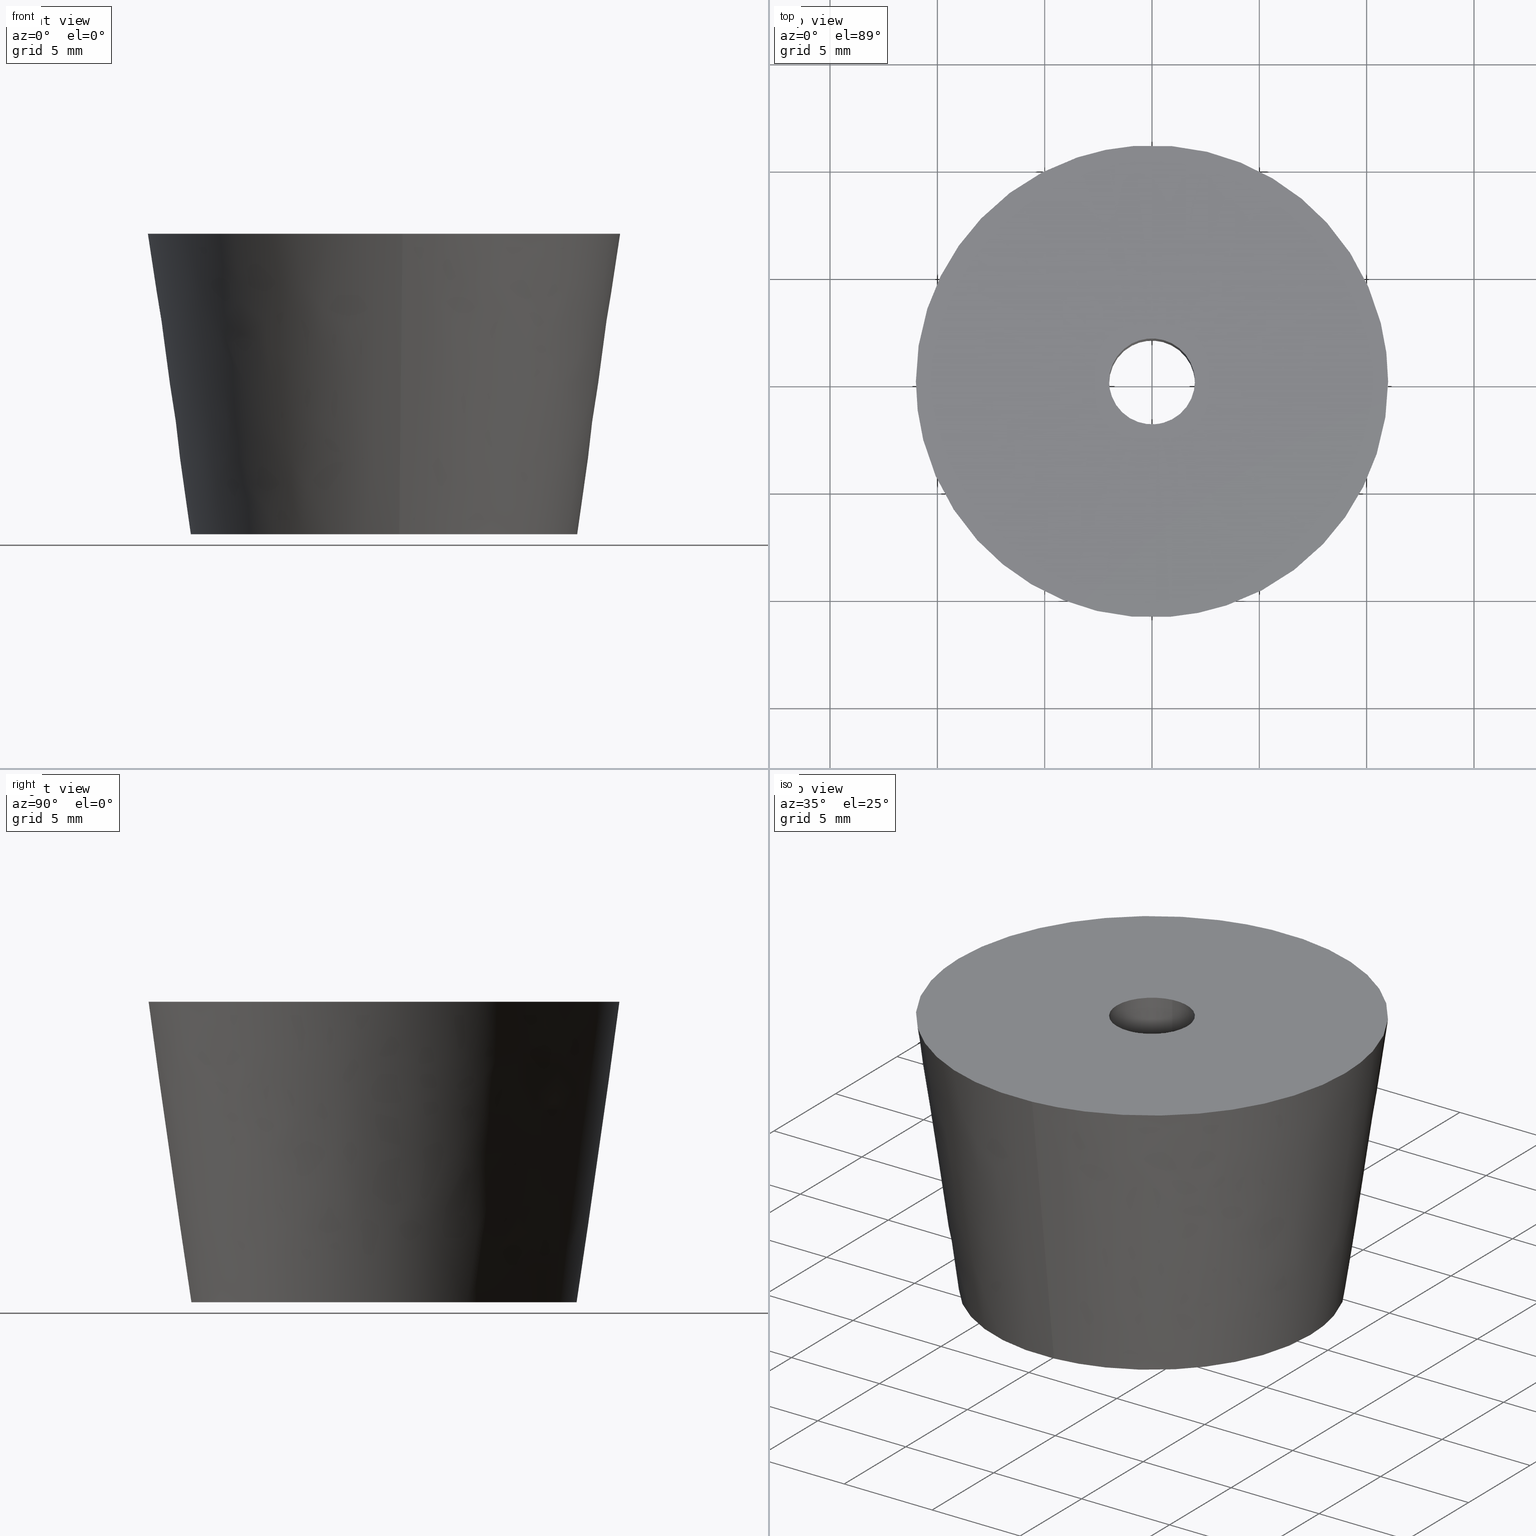
[diagram: canonical four-view strip — front | top / right | iso, engineering-drawing reading convention]
A machine part, canonical four-view strip (front | top / right | iso — engineering-drawing reading convention). The complete STEP part file that produces these views, byte-faithful:
ISO-10303-21;
HEADER;
/****************************************************************
 * Generated by software with PDE/Lib inside                    *
 * PDElib Version 4.4.1-0003, patched  Thursday August 19 11:58 *
 * International Technegroup Inc. (www.iti-oh.com)              *
 ****************************************************************/
FILE_DESCRIPTION((''),'2;1');
FILE_NAME('','2005-12-14T14:10:00',(''),(''),'','CADfix','');
FILE_SCHEMA(('AUTOMOTIVE_DESIGN'));
ENDSEC;
DATA;
#5=APPLICATION_CONTEXT('automotive design');
#6=APPLICATION_PROTOCOL_DEFINITION('Draft International Standard','automotive_design',1998,#5);
#7=PRODUCT_CONTEXT('None',#5,'mechanical');
#8=PRODUCT('rubber foot','','None',(#7));
#9=PRODUCT_RELATED_PRODUCT_CATEGORY('part','description',(#8));
#10=PRODUCT_DEFINITION_FORMATION('None','None',#8);
#11=PRODUCT_DEFINITION_CONTEXT('part definition',#5,'design');
#12=PRODUCT_DEFINITION('None','None',#10,#11);
#18=(NAMED_UNIT(*)PLANE_ANGLE_UNIT()SI_UNIT($,.RADIAN.));
#19=DIMENSIONAL_EXPONENTS(0.0,0.0,0.0,0.0,0.0,0.0,0.0);
#20=PLANE_ANGLE_MEASURE_WITH_UNIT(PLANE_ANGLE_MEASURE(0.017453292500000),#18);
#24=(CONVERSION_BASED_UNIT('DEGREE',#20)NAMED_UNIT(#19)PLANE_ANGLE_UNIT());
#28=(NAMED_UNIT(*)SI_UNIT($,.STERADIAN.)SOLID_ANGLE_UNIT());
#32=(LENGTH_UNIT()NAMED_UNIT(*)SI_UNIT(.MILLI.,.METRE.));
#34=UNCERTAINTY_MEASURE_WITH_UNIT(LENGTH_MEASURE(0.001000000000000),#32,'DISTANCE_ACCURACY_VALUE','');
#36=(GEOMETRIC_REPRESENTATION_CONTEXT(3)GLOBAL_UNCERTAINTY_ASSIGNED_CONTEXT((#34))GLOBAL_UNIT_ASSIGNED_CONTEXT((#24,#28,#32))REPRESENTATION_CONTEXT('None','None'));
#37=AXIS2_PLACEMENT_3D('',#38,#39,#40);
#38=CARTESIAN_POINT('',(0.0,0.0,0.0));
#39=DIRECTION('',(0.0,0.0,1.0));
#40=DIRECTION('',(1.0,0.0,0.0));
#41=ADVANCED_BREP_SHAPE_REPRESENTATION('',(#37,#657),#36);
#42=PRODUCT_DEFINITION_SHAPE('','',#12);
#43=SHAPE_DEFINITION_REPRESENTATION(#42,#41);
#44=CARTESIAN_POINT('',(-0.531154055955413,4.468542868636499,8.199999999999839));
#45=CARTESIAN_POINT('',(-0.403266278870900,4.483744269518725,8.199999999999838));
#46=CARTESIAN_POINT('',(-0.274718427906856,4.491606592898400,8.199999999999838));
#47=CARTESIAN_POINT('',(4.216888164991543,4.766325020805256,8.199999999999838));
#48=CARTESIAN_POINT('',(4.491606592898400,0.274718427906856,8.199999999999838));
#49=CARTESIAN_POINT('',(4.766325020805256,-4.216888164991543,8.199999999999838));
#50=CARTESIAN_POINT('',(0.274718427906856,-4.491606592898400,8.199999999999838));
#51=CARTESIAN_POINT('',(-0.531154055955413,4.468542868636499,-0.204999999999996));
#52=CARTESIAN_POINT('',(-0.403266278870900,4.483744269518725,-0.204999999999996));
#53=CARTESIAN_POINT('',(-0.274718427906856,4.491606592898400,-0.204999999999996));
#54=CARTESIAN_POINT('',(4.216888164991543,4.766325020805256,-0.204999999999996));
#55=CARTESIAN_POINT('',(4.491606592898400,0.274718427906856,-0.204999999999996));
#56=CARTESIAN_POINT('',(4.766325020805256,-4.216888164991543,-0.204999999999996));
#57=CARTESIAN_POINT('',(0.274718427906856,-4.491606592898400,-0.204999999999996));
#65=(BOUNDED_SURFACE()B_SPLINE_SURFACE(2,1,((#44,#51),(#45,#52),(#46,#53),(#47,#54),(#48,#55),(#49,#56),(#50,#57)),.UNSPECIFIED.,.F.,.F.,.U.)B_SPLINE_SURFACE_WITH_KNOTS((3,2,2,3),(2,2),(0.0,0.298233764908629,7.754077887624337,15.209922010340049),(0.0,8.404999999999834),.UNSPECIFIED.)GEOMETRIC_REPRESENTATION_ITEM()RATIONAL_B_SPLINE_SURFACE(((0.977505800795127,0.977505800795127),(0.988284271247462,0.988284271247462),(1.0,1.0),(0.707106781186548,0.707106781186548),(1.0,1.0),(0.707106781186548,0.707106781186548),(1.0,1.0)))REPRESENTATION_ITEM('')SURFACE());
#66=CARTESIAN_POINT('',(-0.531147358239286,4.468543664751406,7.999999999999863));
#67=VERTEX_POINT('',#66);
#68=CARTESIAN_POINT('',(4.500000000000000,0.0,7.999999999999839));
#69=VERTEX_POINT('',#68);
#70=CARTESIAN_POINT('',(-0.531147358239286,4.468543664751407,7.999999999999864));
#71=CARTESIAN_POINT('',(-0.266505154172585,4.500000000000000,7.999999999999840));
#72=CARTESIAN_POINT('',(0.0,4.500000000000000,7.999999999999839));
#73=CARTESIAN_POINT('',(4.500000000000000,4.500000000000000,7.999999999999839));
#74=CARTESIAN_POINT('',(4.500000000000000,0.0,7.999999999999839));
#82=(BOUNDED_CURVE()B_SPLINE_CURVE(2,(#70,#71,#72,#73,#74),.UNSPECIFIED.,.F.,.U.)B_SPLINE_CURVE_WITH_KNOTS((3,2,3),(0.229562726827724,0.250000000000000,0.500000000000000),.UNSPECIFIED.)CURVE()GEOMETRIC_REPRESENTATION_ITEM()RATIONAL_B_SPLINE_CURVE((0.956027250690530,0.976056245107209,1.0,0.707106781186547,1.0))REPRESENTATION_ITEM(''));
#83=EDGE_CURVE('',#67,#69,#82,.T.);
#84=ORIENTED_EDGE('',*,*,#83,.F.);
#85=CARTESIAN_POINT('',(-0.531147438978127,4.468543655154615,6.956599E-016));
#86=VERTEX_POINT('',#85);
#87=CARTESIAN_POINT('',(-0.531147358239286,4.468543664751406,7.999999999999863));
#88=CARTESIAN_POINT('',(-0.531147438978127,4.468543655154615,6.956599E-016));
#89=QUASI_UNIFORM_CURVE('',1,(#87,#88),.UNSPECIFIED.,.F.,.U.);
#90=EDGE_CURVE('',#67,#86,#89,.T.);
#91=ORIENTED_EDGE('',*,*,#90,.T.);
#92=CARTESIAN_POINT('',(4.500000000000000,0.0,0.0));
#93=VERTEX_POINT('',#92);
#94=CARTESIAN_POINT('',(-0.531147438978127,4.468543655154615,6.956599E-016));
#95=CARTESIAN_POINT('',(-0.266505194968768,4.500000000000000,0.0));
#96=CARTESIAN_POINT('',(0.0,4.500000000000000,0.0));
#97=CARTESIAN_POINT('',(4.500000000000000,4.500000000000000,0.0));
#98=CARTESIAN_POINT('',(4.500000000000000,0.0,0.0));
#106=(BOUNDED_CURVE()B_SPLINE_CURVE(2,(#94,#95,#96,#97,#98),.UNSPECIFIED.,.F.,.U.)B_SPLINE_CURVE_WITH_KNOTS((3,2,3),(0.229562723774127,0.250000000000000,0.500000000000000),.UNSPECIFIED.)CURVE()GEOMETRIC_REPRESENTATION_ITEM()RATIONAL_B_SPLINE_CURVE((0.956027244705340,0.976056241529698,1.0,0.707106781186547,1.0))REPRESENTATION_ITEM(''));
#107=EDGE_CURVE('',#86,#93,#106,.T.);
#108=ORIENTED_EDGE('',*,*,#107,.T.);
#109=CARTESIAN_POINT('',(0.274714620861846,-4.491606825744010,7.077672E-016));
#110=VERTEX_POINT('',#109);
#111=CARTESIAN_POINT('',(4.500000000000000,0.0,0.0));
#112=CARTESIAN_POINT('',(4.500000000000000,-4.233180895784416,0.0));
#113=CARTESIAN_POINT('',(0.274714620861846,-4.491606825744010,7.077672E-016));
#121=(BOUNDED_CURVE()B_SPLINE_CURVE(2,(#111,#112,#113),.UNSPECIFIED.,.F.,.U.)B_SPLINE_CURVE_WITH_KNOTS((3,3),(0.500000000000000,0.739333108491078),.UNSPECIFIED.)CURVE()GEOMETRIC_REPRESENTATION_ITEM()RATIONAL_B_SPLINE_CURVE((1.0,0.719603821941675,0.976072355113085))REPRESENTATION_ITEM(''));
#122=EDGE_CURVE('',#93,#110,#121,.T.);
#123=ORIENTED_EDGE('',*,*,#122,.T.);
#124=CARTESIAN_POINT('',(0.274714574489476,-4.491606828580186,7.999999999999824));
#125=VERTEX_POINT('',#124);
#126=CARTESIAN_POINT('',(0.274714574489476,-4.491606828580186,7.999999999999824));
#127=CARTESIAN_POINT('',(0.274714620861846,-4.491606825744010,7.077672E-016));
#128=QUASI_UNIFORM_CURVE('',1,(#126,#127),.UNSPECIFIED.,.F.,.U.);
#129=EDGE_CURVE('',#125,#110,#128,.T.);
#130=ORIENTED_EDGE('',*,*,#129,.F.);
#131=CARTESIAN_POINT('',(4.500000000000000,0.0,7.999999999999839));
#132=CARTESIAN_POINT('',(4.500000000000000,-4.233180939570402,7.999999999999839));
#133=CARTESIAN_POINT('',(0.274714574489476,-4.491606828580186,7.999999999999824));
#141=(BOUNDED_CURVE()B_SPLINE_CURVE(2,(#131,#132,#133),.UNSPECIFIED.,.F.,.U.)B_SPLINE_CURVE_WITH_KNOTS((3,3),(0.500000000000000,0.739333110272491),.UNSPECIFIED.)CURVE()GEOMETRIC_REPRESENTATION_ITEM()RATIONAL_B_SPLINE_CURVE((1.0,0.719603819854620,0.976072358930996))REPRESENTATION_ITEM(''));
#142=EDGE_CURVE('',#69,#125,#141,.T.);
#143=ORIENTED_EDGE('',*,*,#142,.F.);
#144=EDGE_LOOP('',(#84,#91,#108,#123,#130,#143));
#145=FACE_OUTER_BOUND('',#144,.T.);
#146=ADVANCED_FACE('',(#145),#65,.F.);
#147=CARTESIAN_POINT('',(0.336609845909213,-4.487821151608547,8.199999999999839));
#148=CARTESIAN_POINT('',(0.305752702420252,-4.489708455354689,8.199999999999834));
#149=CARTESIAN_POINT('',(-4.216888164991543,-4.766325020805256,8.199999999999838));
#150=CARTESIAN_POINT('',(-4.491606592898400,-0.274718427906856,8.199999999999838));
#151=CARTESIAN_POINT('',(-4.751037885296373,3.966945708777753,8.199999999999838));
#152=CARTESIAN_POINT('',(-0.499558072777999,4.472298530182094,8.199999999999838));
#153=CARTESIAN_POINT('',(-0.468131902753029,4.476034006860424,8.199999999999839));
#154=CARTESIAN_POINT('',(0.336609845909213,-4.487821151608547,-0.204999999999996));
#155=CARTESIAN_POINT('',(0.305752702420252,-4.489708455354689,-0.204999999999996));
#156=CARTESIAN_POINT('',(-4.216888164991543,-4.766325020805256,-0.204999999999996));
#157=CARTESIAN_POINT('',(-4.491606592898400,-0.274718427906856,-0.204999999999996));
#158=CARTESIAN_POINT('',(-4.751037885296373,3.966945708777753,-0.204999999999996));
#159=CARTESIAN_POINT('',(-0.499558072777999,4.472298530182094,-0.204999999999996));
#160=CARTESIAN_POINT('',(-0.468131902753029,4.476034006860424,-0.204999999999996));
#168=(BOUNDED_SURFACE()B_SPLINE_SURFACE(2,1,((#147,#154),(#148,#155),(#149,#156),(#150,#157),(#151,#158),(#152,#159),(#153,#160)),.UNSPECIFIED.,.F.,.F.,.U.)B_SPLINE_SURFACE_WITH_KNOTS((3,1,2,1,3),(2,2),(0.0,0.073062818483929,7.528906941199638,14.686517299006720,14.759592310404379),(0.0,8.404999999999834),.UNSPECIFIED.)GEOMETRIC_REPRESENTATION_ITEM()RATIONAL_B_SPLINE_SURFACE(((1.005740357155843,1.005740357155843),(1.002870178577922,1.002870178577922),(0.707106781186548,0.707106781186548),(1.0,1.0),(0.718822509939086,0.718822509939086),(0.980146805751071,0.980146805751071),(0.982787810707016,0.982787810707016)))REPRESENTATION_ITEM('')SURFACE());
#169=CARTESIAN_POINT('',(-4.500000000000000,0.0,7.999999999999839));
#170=VERTEX_POINT('',#169);
#171=CARTESIAN_POINT('',(-4.500000000000000,0.0,7.999999999999839));
#172=CARTESIAN_POINT('',(-4.500000000000000,3.996791399574260,7.999999999999838));
#173=CARTESIAN_POINT('',(-0.531147358239286,4.468543664751407,7.999999999999864));
#181=(BOUNDED_CURVE()B_SPLINE_CURVE(2,(#171,#172,#173),.UNSPECIFIED.,.F.,.U.)B_SPLINE_CURVE_WITH_KNOTS((3,3),(0.0,0.229562726827724),.UNSPECIFIED.)CURVE()GEOMETRIC_REPRESENTATION_ITEM()RATIONAL_B_SPLINE_CURVE((1.0,0.731050536079339,0.956027250690530))REPRESENTATION_ITEM(''));
#182=EDGE_CURVE('',#170,#67,#181,.T.);
#183=ORIENTED_EDGE('',*,*,#182,.F.);
#184=CARTESIAN_POINT('',(0.274714574489476,-4.491606828580186,7.999999999999824));
#185=CARTESIAN_POINT('',(0.137485502732782,-4.499999999999999,7.999999999999839));
#186=CARTESIAN_POINT('',(0.0,-4.500000000000000,7.999999999999839));
#187=CARTESIAN_POINT('',(-4.500000000000000,-4.500000000000000,7.999999999999839));
#188=CARTESIAN_POINT('',(-4.500000000000000,0.0,7.999999999999839));
#196=(BOUNDED_CURVE()B_SPLINE_CURVE(2,(#184,#185,#186,#187,#188),.UNSPECIFIED.,.F.,.U.)B_SPLINE_CURVE_WITH_KNOTS((3,2,3),(0.739333110272491,0.750000000000000,1.0),.UNSPECIFIED.)CURVE()GEOMETRIC_REPRESENTATION_ITEM()RATIONAL_B_SPLINE_CURVE((0.976072358930996,0.987502961331927,1.0,0.707106781186547,1.0))REPRESENTATION_ITEM(''));
#197=EDGE_CURVE('',#125,#170,#196,.T.);
#198=ORIENTED_EDGE('',*,*,#197,.F.);
#199=ORIENTED_EDGE('',*,*,#129,.T.);
#200=CARTESIAN_POINT('',(-4.500000000000000,0.0,0.0));
#201=VERTEX_POINT('',#200);
#202=CARTESIAN_POINT('',(0.274714620861846,-4.491606825744010,7.077672E-016));
#203=CARTESIAN_POINT('',(0.137485525983976,-4.500000000000001,0.0));
#204=CARTESIAN_POINT('',(0.0,-4.500000000000000,0.0));
#205=CARTESIAN_POINT('',(-4.500000000000000,-4.500000000000000,0.0));
#206=CARTESIAN_POINT('',(-4.500000000000000,0.0,0.0));
#214=(BOUNDED_CURVE()B_SPLINE_CURVE(2,(#202,#203,#204,#205,#206),.UNSPECIFIED.,.F.,.U.)B_SPLINE_CURVE_WITH_KNOTS((3,2,3),(0.739333108491078,0.750000000000000,1.0),.UNSPECIFIED.)CURVE()GEOMETRIC_REPRESENTATION_ITEM()RATIONAL_B_SPLINE_CURVE((0.976072355113085,0.987502959244872,1.0,0.707106781186547,1.0))REPRESENTATION_ITEM(''));
#215=EDGE_CURVE('',#110,#201,#214,.T.);
#216=ORIENTED_EDGE('',*,*,#215,.T.);
#217=CARTESIAN_POINT('',(-4.500000000000000,0.0,0.0));
#218=CARTESIAN_POINT('',(-4.500000000000000,3.996791326850819,0.0));
#219=CARTESIAN_POINT('',(-0.531147438978127,4.468543655154615,6.956599E-016));
#227=(BOUNDED_CURVE()B_SPLINE_CURVE(2,(#217,#218,#219),.UNSPECIFIED.,.F.,.U.)B_SPLINE_CURVE_WITH_KNOTS((3,3),(0.0,0.229562723774127),.UNSPECIFIED.)CURVE()GEOMETRIC_REPRESENTATION_ITEM()RATIONAL_B_SPLINE_CURVE((1.0,0.731050539656850,0.956027244705340))REPRESENTATION_ITEM(''));
#228=EDGE_CURVE('',#201,#86,#227,.T.);
#229=ORIENTED_EDGE('',*,*,#228,.T.);
#230=ORIENTED_EDGE('',*,*,#90,.F.);
#231=EDGE_LOOP('',(#183,#198,#199,#216,#229,#230));
#232=FACE_OUTER_BOUND('',#231,.T.);
#233=ADVANCED_FACE('',(#232),#168,.F.);
#234=CARTESIAN_POINT('',(-0.702208906764217,8.922410136911482,-0.350000000000000));
#235=CARTESIAN_POINT('',(-9.624619043675699,8.220201230147266,-0.350000000000000));
#236=CARTESIAN_POINT('',(-8.922410136911482,-0.702208906764217,-0.350000000000000));
#237=CARTESIAN_POINT('',(-8.220201230147266,-9.624619043675699,-0.350000000000000));
#238=CARTESIAN_POINT('',(0.702208906764217,-8.922410136911482,-0.350000000000000));
#239=CARTESIAN_POINT('',(-0.867071081662353,11.017182684418231,14.358750000000001));
#240=CARTESIAN_POINT('',(-11.884253766080581,10.150111602755874,14.358749999999999));
#241=CARTESIAN_POINT('',(-11.017182684418231,-0.867071081662353,14.358750000000001));
#242=CARTESIAN_POINT('',(-10.150111602755874,-11.884253766080581,14.358749999999999));
#243=CARTESIAN_POINT('',(0.867071081662353,-11.017182684418231,14.358750000000001));
#251=(BOUNDED_SURFACE()B_SPLINE_SURFACE(2,1,((#234,#239),(#235,#240),(#236,#241),(#237,#242),(#238,#243)),.UNSPECIFIED.,.F.,.F.,.U.)B_SPLINE_SURFACE_WITH_KNOTS((3,2,3),(2,2),(0.0,18.310310524702661,36.620621049405322),(0.0,14.858081239682340),.UNSPECIFIED.)GEOMETRIC_REPRESENTATION_ITEM()RATIONAL_B_SPLINE_SURFACE(((1.0,1.0),(0.707106781186548,0.707106781186548),(1.0,1.0),(0.707106781186548,0.707106781186548),(1.0,1.0)))REPRESENTATION_ITEM('')SURFACE());
#252=CARTESIAN_POINT('',(-9.0,0.0,0.0));
#253=VERTEX_POINT('',#252);
#254=CARTESIAN_POINT('',(-0.706130450822384,8.972256042262355,-0.000000504974533));
#255=VERTEX_POINT('',#254);
#256=CARTESIAN_POINT('',(-9.0,0.0,0.0));
#257=CARTESIAN_POINT('',(-9.0,8.319515731800587,0.0));
#258=CARTESIAN_POINT('',(-0.706130450822384,8.972256042262355,-0.000000504974533));
#266=(BOUNDED_CURVE()B_SPLINE_CURVE(2,(#256,#257,#258),.UNSPECIFIED.,.F.,.U.)B_SPLINE_CURVE_WITH_KNOTS((3,3),(0.0,0.236331327478090),.UNSPECIFIED.)CURVE()GEOMETRIC_REPRESENTATION_ITEM()RATIONAL_B_SPLINE_CURVE((1.0,0.723120627153944,0.969723412195964))REPRESENTATION_ITEM(''));
#267=EDGE_CURVE('',#253,#255,#266,.T.);
#268=ORIENTED_EDGE('',*,*,#267,.F.);
#269=CARTESIAN_POINT('',(0.706130450822384,-8.972256042262355,-0.000000504974533));
#270=VERTEX_POINT('',#269);
#271=CARTESIAN_POINT('',(0.706130450822384,-8.972256042262355,-0.000000504974533));
#272=CARTESIAN_POINT('',(0.353610257274673,-9.0,0.0));
#273=CARTESIAN_POINT('',(0.0,-9.0,0.0));
#274=CARTESIAN_POINT('',(-9.0,-9.0,0.0));
#275=CARTESIAN_POINT('',(-9.0,0.0,0.0));
#283=(BOUNDED_CURVE()B_SPLINE_CURVE(2,(#271,#272,#273,#274,#275),.UNSPECIFIED.,.F.,.U.)B_SPLINE_CURVE_WITH_KNOTS((3,2,3),(0.736331327478090,0.750000000000000,1.0),.UNSPECIFIED.)CURVE()GEOMETRIC_REPRESENTATION_ITEM()RATIONAL_B_SPLINE_CURVE((0.969723412195964,0.983986154032603,1.0,0.707106781186547,1.0))REPRESENTATION_ITEM(''));
#284=EDGE_CURVE('',#270,#253,#283,.T.);
#285=ORIENTED_EDGE('',*,*,#284,.F.);
#286=CARTESIAN_POINT('',(0.863043719665199,-10.966090825320739,13.999997598133641));
#287=VERTEX_POINT('',#286);
#288=CARTESIAN_POINT('',(0.706130450822384,-8.972256042262355,-0.000000504974533));
#289=CARTESIAN_POINT('',(0.863043719665199,-10.966090825320739,13.999997598133641));
#290=QUASI_UNIFORM_CURVE('',1,(#288,#289),.UNSPECIFIED.,.F.,.U.);
#291=EDGE_CURVE('',#270,#287,#290,.T.);
#292=ORIENTED_EDGE('',*,*,#291,.T.);
#293=CARTESIAN_POINT('',(-11.0,0.0,14.0));
#294=VERTEX_POINT('',#293);
#295=CARTESIAN_POINT('',(0.863043719665199,-10.966090825320734,13.999997598133639));
#296=CARTESIAN_POINT('',(0.432187982809188,-10.999999664143953,13.999997641750518));
#297=CARTESIAN_POINT('',(-0.000000025903385,-10.999999670863840,13.999997688934970));
#298=CARTESIAN_POINT('',(-11.000000012442824,-10.999999841897772,13.999998889868149));
#299=CARTESIAN_POINT('',(-11.0,0.0,14.0));
#307=(BOUNDED_CURVE()B_SPLINE_CURVE(2,(#295,#296,#297,#298,#299),.UNSPECIFIED.,.F.,.U.)B_SPLINE_CURVE_WITH_KNOTS((3,2,3),(0.736331399216205,0.750000000000000,1.0),.UNSPECIFIED.)CURVE()GEOMETRIC_REPRESENTATION_ITEM()RATIONAL_B_SPLINE_CURVE((0.969723561908021,0.983986238079033,1.0,0.707106781186548,1.0))REPRESENTATION_ITEM(''));
#308=EDGE_CURVE('',#287,#294,#307,.T.);
#309=ORIENTED_EDGE('',*,*,#308,.T.);
#310=CARTESIAN_POINT('',(-0.863043719665198,10.966090825320739,13.999997598133641));
#311=VERTEX_POINT('',#310);
#312=CARTESIAN_POINT('',(-11.0,0.0,14.0));
#313=CARTESIAN_POINT('',(-10.999999986539438,10.168301102910700,13.999998799066827));
#314=CARTESIAN_POINT('',(-0.863043719665198,10.966090825320736,13.999997598133641));
#322=(BOUNDED_CURVE()B_SPLINE_CURVE(2,(#312,#313,#314),.UNSPECIFIED.,.F.,.U.)B_SPLINE_CURVE_WITH_KNOTS((3,3),(0.0,0.236331399216205),.UNSPECIFIED.)CURVE()GEOMETRIC_REPRESENTATION_ITEM()RATIONAL_B_SPLINE_CURVE((1.0,0.723120543107515,0.969723561908021))REPRESENTATION_ITEM(''));
#323=EDGE_CURVE('',#294,#311,#322,.T.);
#324=ORIENTED_EDGE('',*,*,#323,.T.);
#325=CARTESIAN_POINT('',(-0.706130450822384,8.972256042262355,-0.000000504974533));
#326=CARTESIAN_POINT('',(-0.863043719665198,10.966090825320739,13.999997598133641));
#327=QUASI_UNIFORM_CURVE('',1,(#325,#326),.UNSPECIFIED.,.F.,.U.);
#328=EDGE_CURVE('',#255,#311,#327,.T.);
#329=ORIENTED_EDGE('',*,*,#328,.F.);
#330=EDGE_LOOP('',(#268,#285,#292,#309,#324,#329));
#331=FACE_OUTER_BOUND('',#330,.T.);
#332=ADVANCED_FACE('',(#331),#251,.T.);
#333=CARTESIAN_POINT('',(0.702208906764217,-8.922410136911482,-0.350000000000000));
#334=CARTESIAN_POINT('',(9.624619043675699,-8.220201230147266,-0.350000000000000));
#335=CARTESIAN_POINT('',(8.922410136911482,0.702208906764217,-0.350000000000000));
#336=CARTESIAN_POINT('',(8.220201230147266,9.624619043675699,-0.350000000000000));
#337=CARTESIAN_POINT('',(-0.702208906764217,8.922410136911482,-0.350000000000000));
#338=CARTESIAN_POINT('',(0.867071081662353,-11.017182684418231,14.358750000000001));
#339=CARTESIAN_POINT('',(11.884253766080581,-10.150111602755874,14.358749999999999));
#340=CARTESIAN_POINT('',(11.017182684418231,0.867071081662353,14.358750000000001));
#341=CARTESIAN_POINT('',(10.150111602755874,11.884253766080581,14.358749999999999));
#342=CARTESIAN_POINT('',(-0.867071081662353,11.017182684418231,14.358750000000001));
#350=(BOUNDED_SURFACE()B_SPLINE_SURFACE(2,1,((#333,#338),(#334,#339),(#335,#340),(#336,#341),(#337,#342)),.UNSPECIFIED.,.F.,.F.,.U.)B_SPLINE_SURFACE_WITH_KNOTS((3,2,3),(2,2),(0.0,18.310310524702661,36.620621049405322),(0.0,14.858081239682340),.UNSPECIFIED.)GEOMETRIC_REPRESENTATION_ITEM()RATIONAL_B_SPLINE_SURFACE(((1.0,1.0),(0.707106781186548,0.707106781186548),(1.0,1.0),(0.707106781186548,0.707106781186548),(1.0,1.0)))REPRESENTATION_ITEM('')SURFACE());
#351=CARTESIAN_POINT('',(9.0,0.0,0.0));
#352=VERTEX_POINT('',#351);
#353=CARTESIAN_POINT('',(-0.706130450822384,8.972256042262355,-0.000000504974533));
#354=CARTESIAN_POINT('',(-0.353610257274673,9.0,0.0));
#355=CARTESIAN_POINT('',(0.0,9.0,0.0));
#356=CARTESIAN_POINT('',(9.0,9.0,0.0));
#357=CARTESIAN_POINT('',(9.0,0.0,0.0));
#365=(BOUNDED_CURVE()B_SPLINE_CURVE(2,(#353,#354,#355,#356,#357),.UNSPECIFIED.,.F.,.U.)B_SPLINE_CURVE_WITH_KNOTS((3,2,3),(0.236331327478090,0.250000000000000,0.500000000000000),.UNSPECIFIED.)CURVE()GEOMETRIC_REPRESENTATION_ITEM()RATIONAL_B_SPLINE_CURVE((0.969723412195964,0.983986154032603,1.0,0.707106781186547,1.0))REPRESENTATION_ITEM(''));
#366=EDGE_CURVE('',#255,#352,#365,.T.);
#367=ORIENTED_EDGE('',*,*,#366,.F.);
#368=ORIENTED_EDGE('',*,*,#328,.T.);
#369=CARTESIAN_POINT('',(11.0,0.0,14.0));
#370=VERTEX_POINT('',#369);
#371=CARTESIAN_POINT('',(-0.863043719665198,10.966090825320736,13.999997598133641));
#372=CARTESIAN_POINT('',(-0.432187982809186,10.999999664143953,13.999997641750518));
#373=CARTESIAN_POINT('',(0.000000025903387,10.999999670863840,13.999997688934970));
#374=CARTESIAN_POINT('',(11.000000012442825,10.999999841897772,13.999998889868145));
#375=CARTESIAN_POINT('',(11.0,0.0,14.0));
#383=(BOUNDED_CURVE()B_SPLINE_CURVE(2,(#371,#372,#373,#374,#375),.UNSPECIFIED.,.F.,.U.)B_SPLINE_CURVE_WITH_KNOTS((3,2,3),(0.236331399216205,0.250000000000000,0.500000000000000),.UNSPECIFIED.)CURVE()GEOMETRIC_REPRESENTATION_ITEM()RATIONAL_B_SPLINE_CURVE((0.969723561908021,0.983986238079033,1.0,0.707106781186548,1.0))REPRESENTATION_ITEM(''));
#384=EDGE_CURVE('',#311,#370,#383,.T.);
#385=ORIENTED_EDGE('',*,*,#384,.T.);
#386=CARTESIAN_POINT('',(11.0,0.0,14.0));
#387=CARTESIAN_POINT('',(10.999999986539441,-10.168301102910700,13.999998799066827));
#388=CARTESIAN_POINT('',(0.863043719665199,-10.966090825320734,13.999997598133639));
#396=(BOUNDED_CURVE()B_SPLINE_CURVE(2,(#386,#387,#388),.UNSPECIFIED.,.F.,.U.)B_SPLINE_CURVE_WITH_KNOTS((3,3),(0.500000000000000,0.736331399216205),.UNSPECIFIED.)CURVE()GEOMETRIC_REPRESENTATION_ITEM()RATIONAL_B_SPLINE_CURVE((1.0,0.723120543107515,0.969723561908021))REPRESENTATION_ITEM(''));
#397=EDGE_CURVE('',#370,#287,#396,.T.);
#398=ORIENTED_EDGE('',*,*,#397,.T.);
#399=ORIENTED_EDGE('',*,*,#291,.F.);
#400=CARTESIAN_POINT('',(9.0,0.0,0.0));
#401=CARTESIAN_POINT('',(9.0,-8.319515731800587,0.0));
#402=CARTESIAN_POINT('',(0.706130450822384,-8.972256042262355,-0.000000504974533));
#410=(BOUNDED_CURVE()B_SPLINE_CURVE(2,(#400,#401,#402),.UNSPECIFIED.,.F.,.U.)B_SPLINE_CURVE_WITH_KNOTS((3,3),(0.500000000000000,0.736331327478090),.UNSPECIFIED.)CURVE()GEOMETRIC_REPRESENTATION_ITEM()RATIONAL_B_SPLINE_CURVE((1.0,0.723120627153944,0.969723412195964))REPRESENTATION_ITEM(''));
#411=EDGE_CURVE('',#352,#270,#410,.T.);
#412=ORIENTED_EDGE('',*,*,#411,.F.);
#413=EDGE_LOOP('',(#367,#368,#385,#398,#399,#412));
#414=FACE_OUTER_BOUND('',#413,.T.);
#415=ADVANCED_FACE('',(#414),#350,.T.);
#416=CARTESIAN_POINT('',(-0.236068469313517,1.986019052727332,14.150000000000007));
#417=CARTESIAN_POINT('',(-0.179229457275955,1.992775230897211,14.150000000000006));
#418=CARTESIAN_POINT('',(-0.122097079069714,1.996269596843733,14.150000000000009));
#419=CARTESIAN_POINT('',(1.874172517774020,2.118366675913447,14.150000000000004));
#420=CARTESIAN_POINT('',(1.996269596843733,0.122097079069714,14.150000000000009));
#421=CARTESIAN_POINT('',(2.118366675913447,-1.874172517774020,14.150000000000004));
#422=CARTESIAN_POINT('',(0.122097079069714,-1.996269596843733,14.150000000000009));
#423=CARTESIAN_POINT('',(-0.236068469313517,1.986019052727332,7.846249999999835));
#424=CARTESIAN_POINT('',(-0.179229457275955,1.992775230897211,7.846249999999834));
#425=CARTESIAN_POINT('',(-0.122097079069714,1.996269596843733,7.846249999999833));
#426=CARTESIAN_POINT('',(1.874172517774020,2.118366675913447,7.846249999999833));
#427=CARTESIAN_POINT('',(1.996269596843733,0.122097079069714,7.846249999999833));
#428=CARTESIAN_POINT('',(2.118366675913447,-1.874172517774020,7.846249999999833));
#429=CARTESIAN_POINT('',(0.122097079069714,-1.996269596843733,7.846249999999833));
#437=(BOUNDED_SURFACE()B_SPLINE_SURFACE(2,1,((#416,#423),(#417,#424),(#418,#425),(#419,#426),(#420,#427),(#421,#428),(#422,#429)),.UNSPECIFIED.,.F.,.F.,.U.)B_SPLINE_SURFACE_WITH_KNOTS((3,2,2,3),(2,2),(0.0,0.132548339959391,3.446256838944149,6.759965337928908),(0.0,6.303750000000174),.UNSPECIFIED.)GEOMETRIC_REPRESENTATION_ITEM()RATIONAL_B_SPLINE_SURFACE(((0.977505800795127,0.977505800795127),(0.988284271247462,0.988284271247462),(1.0,1.0),(0.707106781186548,0.707106781186548),(1.0,1.0),(0.707106781186548,0.707106781186548),(1.0,1.0)))REPRESENTATION_ITEM('')SURFACE());
#438=CARTESIAN_POINT('',(-0.236068469325456,1.986019052725913,7.999999999999839));
#439=VERTEX_POINT('',#438);
#440=CARTESIAN_POINT('',(2.0,0.0,7.999999999999839));
#441=VERTEX_POINT('',#440);
#442=CARTESIAN_POINT('',(-0.236068469325456,1.986019052725914,7.999999999999839));
#443=CARTESIAN_POINT('',(-0.118448239315886,2.000000000000000,7.999999999999840));
#444=CARTESIAN_POINT('',(0.0,2.0,7.999999999999839));
#445=CARTESIAN_POINT('',(2.000000000000000,2.000000000000000,7.999999999999839));
#446=CARTESIAN_POINT('',(2.0,0.0,7.999999999999839));
#454=(BOUNDED_CURVE()B_SPLINE_CURVE(2,(#442,#443,#444,#445,#446),.UNSPECIFIED.,.F.,.U.)B_SPLINE_CURVE_WITH_KNOTS((3,2,3),(0.229562473513612,0.250000000000000,0.500000000000000),.UNSPECIFIED.)CURVE()GEOMETRIC_REPRESENTATION_ITEM()RATIONAL_B_SPLINE_CURVE((0.956026754183903,0.976055948331267,1.0,0.707106781186548,1.0))REPRESENTATION_ITEM(''));
#455=EDGE_CURVE('',#439,#441,#454,.T.);
#456=ORIENTED_EDGE('',*,*,#455,.T.);
#457=CARTESIAN_POINT('',(0.122097079083763,-1.996269596842874,7.999999999999840));
#458=VERTEX_POINT('',#457);
#459=CARTESIAN_POINT('',(2.0,0.0,7.999999999999839));
#460=CARTESIAN_POINT('',(2.000000000000000,-1.881412133784864,7.999999999999839));
#461=CARTESIAN_POINT('',(0.122097079083763,-1.996269596842874,7.999999999999840));
#469=(BOUNDED_CURVE()B_SPLINE_CURVE(2,(#459,#460,#461),.UNSPECIFIED.,.F.,.U.)B_SPLINE_CURVE_WITH_KNOTS((3,3),(0.500000000000000,0.739332962239540),.UNSPECIFIED.)CURVE()GEOMETRIC_REPRESENTATION_ITEM()RATIONAL_B_SPLINE_CURVE((1.0,0.719603993286010,0.976072041667998))REPRESENTATION_ITEM(''));
#470=EDGE_CURVE('',#441,#458,#469,.T.);
#471=ORIENTED_EDGE('',*,*,#470,.T.);
#472=CARTESIAN_POINT('',(0.122097079083763,-1.996269596842874,14.0));
#473=VERTEX_POINT('',#472);
#474=CARTESIAN_POINT('',(0.122097079083763,-1.996269596842874,14.0));
#475=CARTESIAN_POINT('',(0.122097079083763,-1.996269596842874,7.999999999999840));
#476=QUASI_UNIFORM_CURVE('',1,(#474,#475),.UNSPECIFIED.,.F.,.U.);
#477=EDGE_CURVE('',#473,#458,#476,.T.);
#478=ORIENTED_EDGE('',*,*,#477,.F.);
#479=CARTESIAN_POINT('',(2.0,0.0,14.0));
#480=VERTEX_POINT('',#479);
#481=CARTESIAN_POINT('',(2.0,0.0,14.0));
#482=CARTESIAN_POINT('',(2.000000000000000,-1.881412133784864,14.000000000000005));
#483=CARTESIAN_POINT('',(0.122097079083763,-1.996269596842874,14.000000000000002));
#491=(BOUNDED_CURVE()B_SPLINE_CURVE(2,(#481,#482,#483),.UNSPECIFIED.,.F.,.U.)B_SPLINE_CURVE_WITH_KNOTS((3,3),(0.500000000000000,0.739332962239540),.UNSPECIFIED.)CURVE()GEOMETRIC_REPRESENTATION_ITEM()RATIONAL_B_SPLINE_CURVE((1.0,0.719603993286010,0.976072041667998))REPRESENTATION_ITEM(''));
#492=EDGE_CURVE('',#480,#473,#491,.T.);
#493=ORIENTED_EDGE('',*,*,#492,.F.);
#494=CARTESIAN_POINT('',(-0.236068469325456,1.986019052725913,14.0));
#495=VERTEX_POINT('',#494);
#496=CARTESIAN_POINT('',(-0.236068469325456,1.986019052725914,13.999999999999998));
#497=CARTESIAN_POINT('',(-0.118448239315886,2.000000000000000,14.000000000000005));
#498=CARTESIAN_POINT('',(0.0,2.0,14.0));
#499=CARTESIAN_POINT('',(2.000000000000000,2.000000000000000,13.999999999999998));
#500=CARTESIAN_POINT('',(2.0,0.0,14.0));
#508=(BOUNDED_CURVE()B_SPLINE_CURVE(2,(#496,#497,#498,#499,#500),.UNSPECIFIED.,.F.,.U.)B_SPLINE_CURVE_WITH_KNOTS((3,2,3),(0.229562473513612,0.250000000000000,0.500000000000000),.UNSPECIFIED.)CURVE()GEOMETRIC_REPRESENTATION_ITEM()RATIONAL_B_SPLINE_CURVE((0.956026754183903,0.976055948331267,1.0,0.707106781186548,1.0))REPRESENTATION_ITEM(''));
#509=EDGE_CURVE('',#495,#480,#508,.T.);
#510=ORIENTED_EDGE('',*,*,#509,.F.);
#511=CARTESIAN_POINT('',(-0.236068469325456,1.986019052725913,14.0));
#512=CARTESIAN_POINT('',(-0.236068469325456,1.986019052725913,7.999999999999839));
#513=QUASI_UNIFORM_CURVE('',1,(#511,#512),.UNSPECIFIED.,.F.,.U.);
#514=EDGE_CURVE('',#495,#439,#513,.T.);
#515=ORIENTED_EDGE('',*,*,#514,.T.);
#516=EDGE_LOOP('',(#456,#471,#478,#493,#510,#515));
#517=FACE_OUTER_BOUND('',#516,.T.);
#518=ADVANCED_FACE('',(#517),#437,.F.);
#519=CARTESIAN_POINT('',(0.122097079069714,-1.996269596843733,14.150000000000009));
#520=CARTESIAN_POINT('',(-1.874172517774020,-2.118366675913447,14.150000000000004));
#521=CARTESIAN_POINT('',(-1.996269596843733,-0.122097079069714,14.150000000000009));
#522=CARTESIAN_POINT('',(-2.111572393465055,1.763086981679002,14.150000000000009));
#523=CARTESIAN_POINT('',(-0.236068469313517,1.986019052727332,14.150000000000007));
#524=CARTESIAN_POINT('',(0.122097079069714,-1.996269596843733,7.846249999999833));
#525=CARTESIAN_POINT('',(-1.874172517774020,-2.118366675913447,7.846249999999833));
#526=CARTESIAN_POINT('',(-1.996269596843733,-0.122097079069714,7.846249999999833));
#527=CARTESIAN_POINT('',(-2.111572393465055,1.763086981679002,7.846249999999833));
#528=CARTESIAN_POINT('',(-0.236068469313517,1.986019052727332,7.846249999999835));
#536=(BOUNDED_SURFACE()B_SPLINE_SURFACE(2,1,((#519,#524),(#520,#525),(#521,#526),(#522,#527),(#523,#528)),.UNSPECIFIED.,.F.,.F.,.U.)B_SPLINE_SURFACE_WITH_KNOTS((3,2,3),(2,2),(0.0,3.313708498984759,6.494868658010128),(0.0,6.303750000000174),.UNSPECIFIED.)GEOMETRIC_REPRESENTATION_ITEM()RATIONAL_B_SPLINE_SURFACE(((1.0,1.0),(0.707106781186548,0.707106781186548),(1.0,1.0),(0.718822509939086,0.718822509939086),(0.977505800795127,0.977505800795127)))REPRESENTATION_ITEM('')SURFACE());
#537=CARTESIAN_POINT('',(-2.0,0.0,7.999999999999839));
#538=VERTEX_POINT('',#537);
#539=CARTESIAN_POINT('',(-2.0,0.0,7.999999999999839));
#540=CARTESIAN_POINT('',(-2.000000000000000,1.776349051881226,7.999999999999838));
#541=CARTESIAN_POINT('',(-0.236068469325457,1.986019052725913,7.999999999999839));
#549=(BOUNDED_CURVE()B_SPLINE_CURVE(2,(#539,#540,#541),.UNSPECIFIED.,.F.,.U.)B_SPLINE_CURVE_WITH_KNOTS((3,3),(0.0,0.229562473513612),.UNSPECIFIED.)CURVE()GEOMETRIC_REPRESENTATION_ITEM()RATIONAL_B_SPLINE_CURVE((1.0,0.731050832855281,0.956026754183903))REPRESENTATION_ITEM(''));
#550=EDGE_CURVE('',#538,#439,#549,.T.);
#551=ORIENTED_EDGE('',*,*,#550,.T.);
#552=ORIENTED_EDGE('',*,*,#514,.F.);
#553=CARTESIAN_POINT('',(-2.0,0.0,14.0));
#554=VERTEX_POINT('',#553);
#555=CARTESIAN_POINT('',(-2.0,0.0,14.0));
#556=CARTESIAN_POINT('',(-2.000000000000000,1.776349051881226,13.999999999999996));
#557=CARTESIAN_POINT('',(-0.236068469325457,1.986019052725913,14.0));
#565=(BOUNDED_CURVE()B_SPLINE_CURVE(2,(#555,#556,#557),.UNSPECIFIED.,.F.,.U.)B_SPLINE_CURVE_WITH_KNOTS((3,3),(0.0,0.229562473513612),.UNSPECIFIED.)CURVE()GEOMETRIC_REPRESENTATION_ITEM()RATIONAL_B_SPLINE_CURVE((1.0,0.731050832855281,0.956026754183903))REPRESENTATION_ITEM(''));
#566=EDGE_CURVE('',#554,#495,#565,.T.);
#567=ORIENTED_EDGE('',*,*,#566,.F.);
#568=CARTESIAN_POINT('',(0.122097079083763,-1.996269596842875,13.999999999999996));
#569=CARTESIAN_POINT('',(0.061105526611267,-2.0,13.999999999999998));
#570=CARTESIAN_POINT('',(0.0,-2.0,14.0));
#571=CARTESIAN_POINT('',(-2.000000000000000,-2.000000000000000,13.999999999999998));
#572=CARTESIAN_POINT('',(-2.0,0.0,14.0));
#580=(BOUNDED_CURVE()B_SPLINE_CURVE(2,(#568,#569,#570,#571,#572),.UNSPECIFIED.,.F.,.U.)B_SPLINE_CURVE_WITH_KNOTS((3,2,3),(0.739332962239540,0.750000000000000,1.0),.UNSPECIFIED.)CURVE()GEOMETRIC_REPRESENTATION_ITEM()RATIONAL_B_SPLINE_CURVE((0.976072041667997,0.987502787900536,1.0,0.707106781186548,1.0))REPRESENTATION_ITEM(''));
#581=EDGE_CURVE('',#473,#554,#580,.T.);
#582=ORIENTED_EDGE('',*,*,#581,.F.);
#583=ORIENTED_EDGE('',*,*,#477,.T.);
#584=CARTESIAN_POINT('',(0.122097079083763,-1.996269596842875,7.999999999999840));
#585=CARTESIAN_POINT('',(0.061105526611267,-2.0,7.999999999999839));
#586=CARTESIAN_POINT('',(0.0,-2.0,7.999999999999839));
#587=CARTESIAN_POINT('',(-2.000000000000000,-2.000000000000000,7.999999999999839));
#588=CARTESIAN_POINT('',(-2.0,0.0,7.999999999999839));
#596=(BOUNDED_CURVE()B_SPLINE_CURVE(2,(#584,#585,#586,#587,#588),.UNSPECIFIED.,.F.,.U.)B_SPLINE_CURVE_WITH_KNOTS((3,2,3),(0.739332962239540,0.750000000000000,1.0),.UNSPECIFIED.)CURVE()GEOMETRIC_REPRESENTATION_ITEM()RATIONAL_B_SPLINE_CURVE((0.976072041667997,0.987502787900536,1.0,0.707106781186548,1.0))REPRESENTATION_ITEM(''));
#597=EDGE_CURVE('',#458,#538,#596,.T.);
#598=ORIENTED_EDGE('',*,*,#597,.T.);
#599=EDGE_LOOP('',(#551,#552,#567,#582,#583,#598));
#600=FACE_OUTER_BOUND('',#599,.T.);
#601=ADVANCED_FACE('',(#600),#536,.F.);
#602=CARTESIAN_POINT('',(-4.949549982556253,-4.949440710012754,7.999999999999839));
#603=CARTESIAN_POINT('',(4.949550223955065,-4.949440710012754,7.999999999999839));
#604=CARTESIAN_POINT('',(-4.949549982556253,4.949468149010976,7.999999999999839));
#605=CARTESIAN_POINT('',(4.949550223955065,4.949468149010976,7.999999999999839));
#606=B_SPLINE_SURFACE_WITH_KNOTS('',1,1,((#602,#604),(#603,#605)),.UNSPECIFIED.,.F.,.F.,.U.,(2,2),(2,2),(0.0,9.899100206511317),(0.0,9.898908859023729),.UNSPECIFIED.);
#607=ORIENTED_EDGE('',*,*,#182,.T.);
#608=ORIENTED_EDGE('',*,*,#83,.T.);
#609=ORIENTED_EDGE('',*,*,#142,.T.);
#610=ORIENTED_EDGE('',*,*,#197,.T.);
#611=EDGE_LOOP('',(#607,#608,#609,#610));
#612=FACE_OUTER_BOUND('',#611,.T.);
#613=ORIENTED_EDGE('',*,*,#470,.F.);
#614=ORIENTED_EDGE('',*,*,#455,.F.);
#615=ORIENTED_EDGE('',*,*,#550,.F.);
#616=ORIENTED_EDGE('',*,*,#597,.F.);
#617=EDGE_LOOP('',(#613,#614,#615,#616));
#618=FACE_BOUND('',#617,.T.);
#619=ADVANCED_FACE('',(#612,#618),#606,.F.);
#620=CARTESIAN_POINT('',(-9.899099965112507,-9.896352774541672,0.0));
#621=CARTESIAN_POINT('',(9.899100447910129,-9.896352774541672,0.0));
#622=CARTESIAN_POINT('',(-9.899099965112507,9.896353257339291,0.0));
#623=CARTESIAN_POINT('',(9.899100447910129,9.896353257339291,0.0));
#624=B_SPLINE_SURFACE_WITH_KNOTS('',1,1,((#620,#622),(#621,#623)),.UNSPECIFIED.,.F.,.F.,.U.,(2,2),(2,2),(0.0,19.798200413022631),(0.0,19.792706031880961),.UNSPECIFIED.);
#625=ORIENTED_EDGE('',*,*,#267,.T.);
#626=ORIENTED_EDGE('',*,*,#366,.T.);
#627=ORIENTED_EDGE('',*,*,#411,.T.);
#628=ORIENTED_EDGE('',*,*,#284,.T.);
#629=EDGE_LOOP('',(#625,#626,#627,#628));
#630=FACE_OUTER_BOUND('',#629,.T.);
#631=ORIENTED_EDGE('',*,*,#122,.F.);
#632=ORIENTED_EDGE('',*,*,#107,.F.);
#633=ORIENTED_EDGE('',*,*,#228,.F.);
#634=ORIENTED_EDGE('',*,*,#215,.F.);
#635=EDGE_LOOP('',(#631,#632,#633,#634));
#636=FACE_BOUND('',#635,.T.);
#637=ADVANCED_FACE('',(#630,#636),#624,.F.);
#638=CARTESIAN_POINT('',(12.098899957359730,-12.095541168794631,14.0));
#639=CARTESIAN_POINT('',(-12.098900547445711,-12.095541168794631,14.0));
#640=CARTESIAN_POINT('',(12.098899957359730,12.095541168794631,14.0));
#641=CARTESIAN_POINT('',(-12.098900547445711,12.095541168794631,14.0));
#642=B_SPLINE_SURFACE_WITH_KNOTS('',1,1,((#638,#640),(#639,#641)),.UNSPECIFIED.,.F.,.F.,.U.,(2,2),(2,2),(0.0,24.197800504805439),(0.0,24.191082337589268),.UNSPECIFIED.);
#643=ORIENTED_EDGE('',*,*,#308,.F.);
#644=ORIENTED_EDGE('',*,*,#397,.F.);
#645=ORIENTED_EDGE('',*,*,#384,.F.);
#646=ORIENTED_EDGE('',*,*,#323,.F.);
#647=EDGE_LOOP('',(#643,#644,#645,#646));
#648=FACE_OUTER_BOUND('',#647,.T.);
#649=ORIENTED_EDGE('',*,*,#492,.T.);
#650=ORIENTED_EDGE('',*,*,#581,.T.);
#651=ORIENTED_EDGE('',*,*,#566,.T.);
#652=ORIENTED_EDGE('',*,*,#509,.T.);
#653=EDGE_LOOP('',(#649,#650,#651,#652));
#654=FACE_BOUND('',#653,.T.);
#655=ADVANCED_FACE('',(#648,#654),#642,.F.);
#656=CLOSED_SHELL('',(#146,#233,#332,#415,#518,#601,#619,#637,#655));
#657=MANIFOLD_SOLID_BREP('rubber foot',#656);
#663=(NAMED_UNIT(*)PLANE_ANGLE_UNIT()SI_UNIT($,.RADIAN.));
#664=DIMENSIONAL_EXPONENTS(0.0,0.0,0.0,0.0,0.0,0.0,0.0);
#665=PLANE_ANGLE_MEASURE_WITH_UNIT(PLANE_ANGLE_MEASURE(0.017453292500000),#663);
#669=(CONVERSION_BASED_UNIT('DEGREE',#665)NAMED_UNIT(#664)PLANE_ANGLE_UNIT());
#673=(NAMED_UNIT(*)SI_UNIT($,.STERADIAN.)SOLID_ANGLE_UNIT());
#677=(LENGTH_UNIT()NAMED_UNIT(*)SI_UNIT(.MILLI.,.METRE.));
#679=UNCERTAINTY_MEASURE_WITH_UNIT(LENGTH_MEASURE(0.001000000000000),#677,'DISTANCE_ACCURACY_VALUE','');
#681=(GEOMETRIC_REPRESENTATION_CONTEXT(3)GLOBAL_UNCERTAINTY_ASSIGNED_CONTEXT((#679))GLOBAL_UNIT_ASSIGNED_CONTEXT((#669,#673,#677))REPRESENTATION_CONTEXT('','3D'));
ENDSEC;
END-ISO-10303-21;
